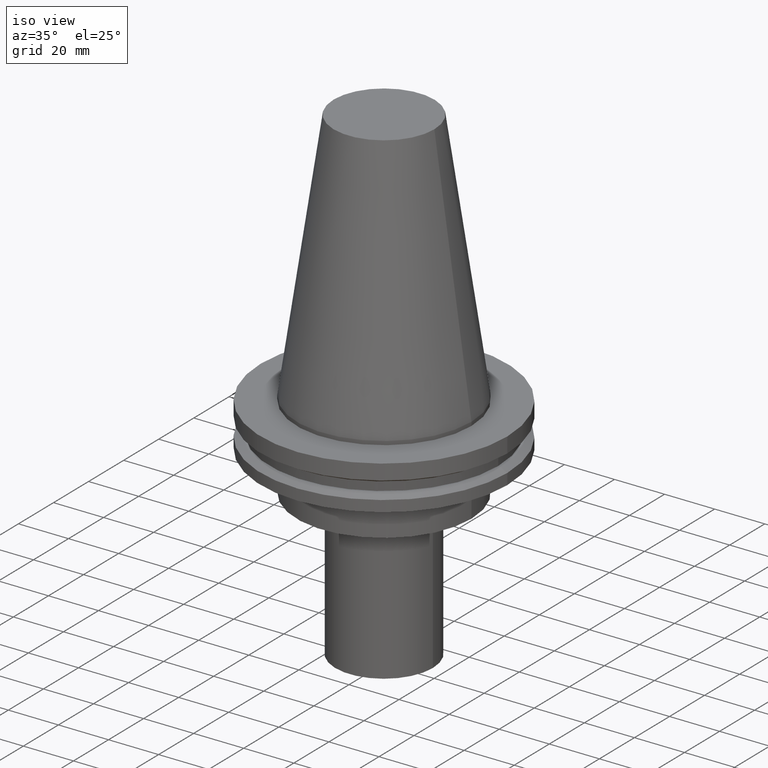
[diagram: clean part render]
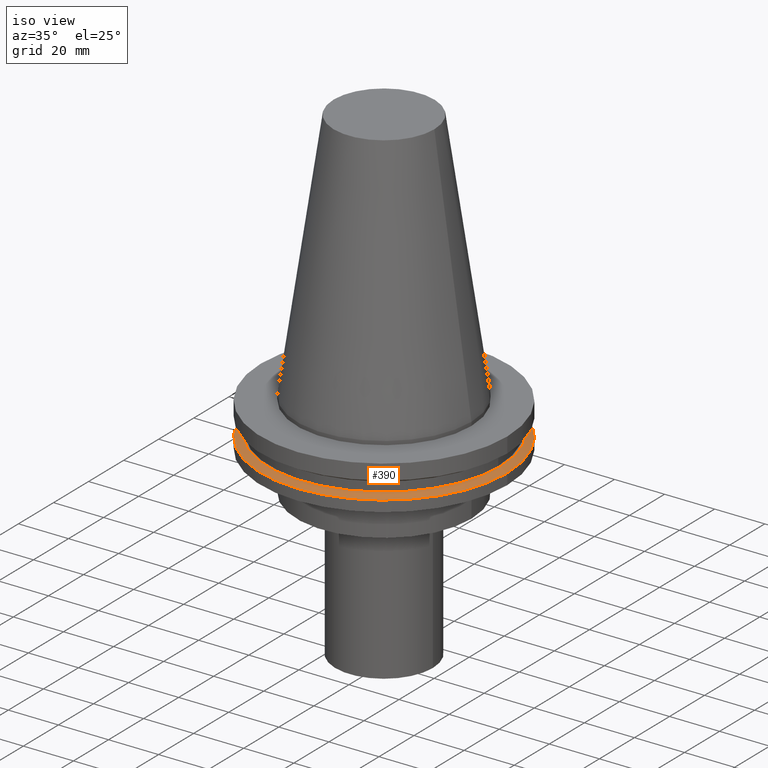
[diagram: same view with one face highlighted and labeled with its STEP entity id]
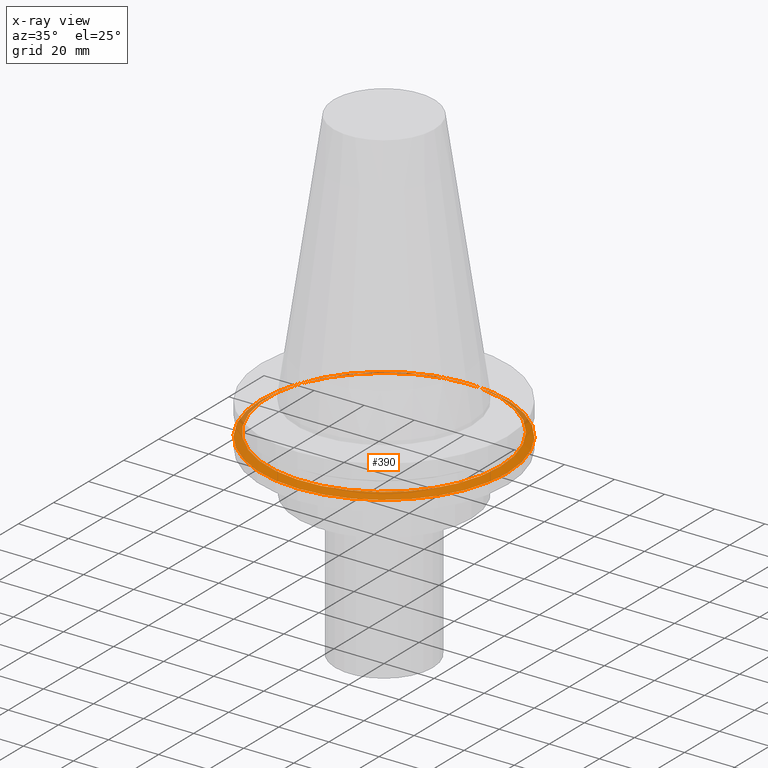
[diagram: x-ray of the same camera — body ghosted, the highlighted face saturated]
A machine part, iso view. The second image highlights one B-rep face of the part: STEP entity #390.
The next image is the same camera in x-ray: the body ghosted, the highlighted face saturated — about 11% of this face is hidden behind the body in this view.
In plain terms, the highlighted conical surface has half-angle 60 deg.
Its self-contained STEP definition (entity closure, byte-faithful):
#14 = AXIS2_PLACEMENT_3D ( 'NONE', #224, #137, #262 ) ;
#24 = VERTEX_POINT ( 'NONE', #302 ) ;
#43 = DIRECTION ( 'NONE',  ( 1.000000000000000000, 0.000000000000000000, 0.000000000000000000 ) ) ;
#48 = CARTESIAN_POINT ( 'NONE',  ( 0.000000000000000000, 0.000000000000000000, -14.65761014474876944 ) ) ;
#86 = ORIENTED_EDGE ( 'NONE', *, *, #127, .T. ) ;
#87 = EDGE_CURVE ( 'NONE', #24, #24, #90, .T. ) ;
#90 = CIRCLE ( 'NONE', #14, 46.43919780457007818 ) ;
#103 = CONICAL_SURFACE ( 'NONE', #171, 49.21499999999998920, 1.047197551196554333 ) ;
#114 = CARTESIAN_POINT ( 'NONE',  ( 49.21499999999998920, 0.000000000000000000, -14.65761014474876944 ) ) ;
#127 = EDGE_CURVE ( 'NONE', #144, #144, #228, .T. ) ;
#137 = DIRECTION ( 'NONE',  ( -0.000000000000000000, -0.000000000000000000, 1.000000000000000000 ) ) ;
#144 = VERTEX_POINT ( 'NONE', #114 ) ;
#149 = AXIS2_PLACEMENT_3D ( 'NONE', #291, #379, #43 ) ;
#155 = EDGE_LOOP ( 'NONE', ( #86 ) ) ;
#171 = AXIS2_PLACEMENT_3D ( 'NONE', #48, #355, #172 ) ;
#172 = DIRECTION ( 'NONE',  ( -1.000000000000000000, 0.000000000000000000, 0.000000000000000000 ) ) ;
#224 = CARTESIAN_POINT ( 'NONE',  ( 0.000000000000000000, 0.000000000000000000, -13.05499999999999794 ) ) ;
#228 = CIRCLE ( 'NONE', #149, 49.21499999999998920 ) ;
#237 = FACE_OUTER_BOUND ( 'NONE', #155, .T. ) ;
#246 = ORIENTED_EDGE ( 'NONE', *, *, #87, .F. ) ;
#262 = DIRECTION ( 'NONE',  ( 1.000000000000000000, 0.000000000000000000, 0.000000000000000000 ) ) ;
#291 = CARTESIAN_POINT ( 'NONE',  ( 0.000000000000000000, 0.000000000000000000, -14.65761014474876944 ) ) ;
#294 = FACE_BOUND ( 'NONE', #392, .T. ) ;
#302 = CARTESIAN_POINT ( 'NONE',  ( 46.43919780457007818, 0.000000000000000000, -13.05499999999999794 ) ) ;
#355 = DIRECTION ( 'NONE',  ( 0.000000000000000000, 0.000000000000000000, -1.000000000000000000 ) ) ;
#379 = DIRECTION ( 'NONE',  ( -0.000000000000000000, -0.000000000000000000, 1.000000000000000000 ) ) ;
#390 = ADVANCED_FACE ( 'NONE', ( #294, #237 ), #103, .T. ) ;
#392 = EDGE_LOOP ( 'NONE', ( #246 ) ) ;